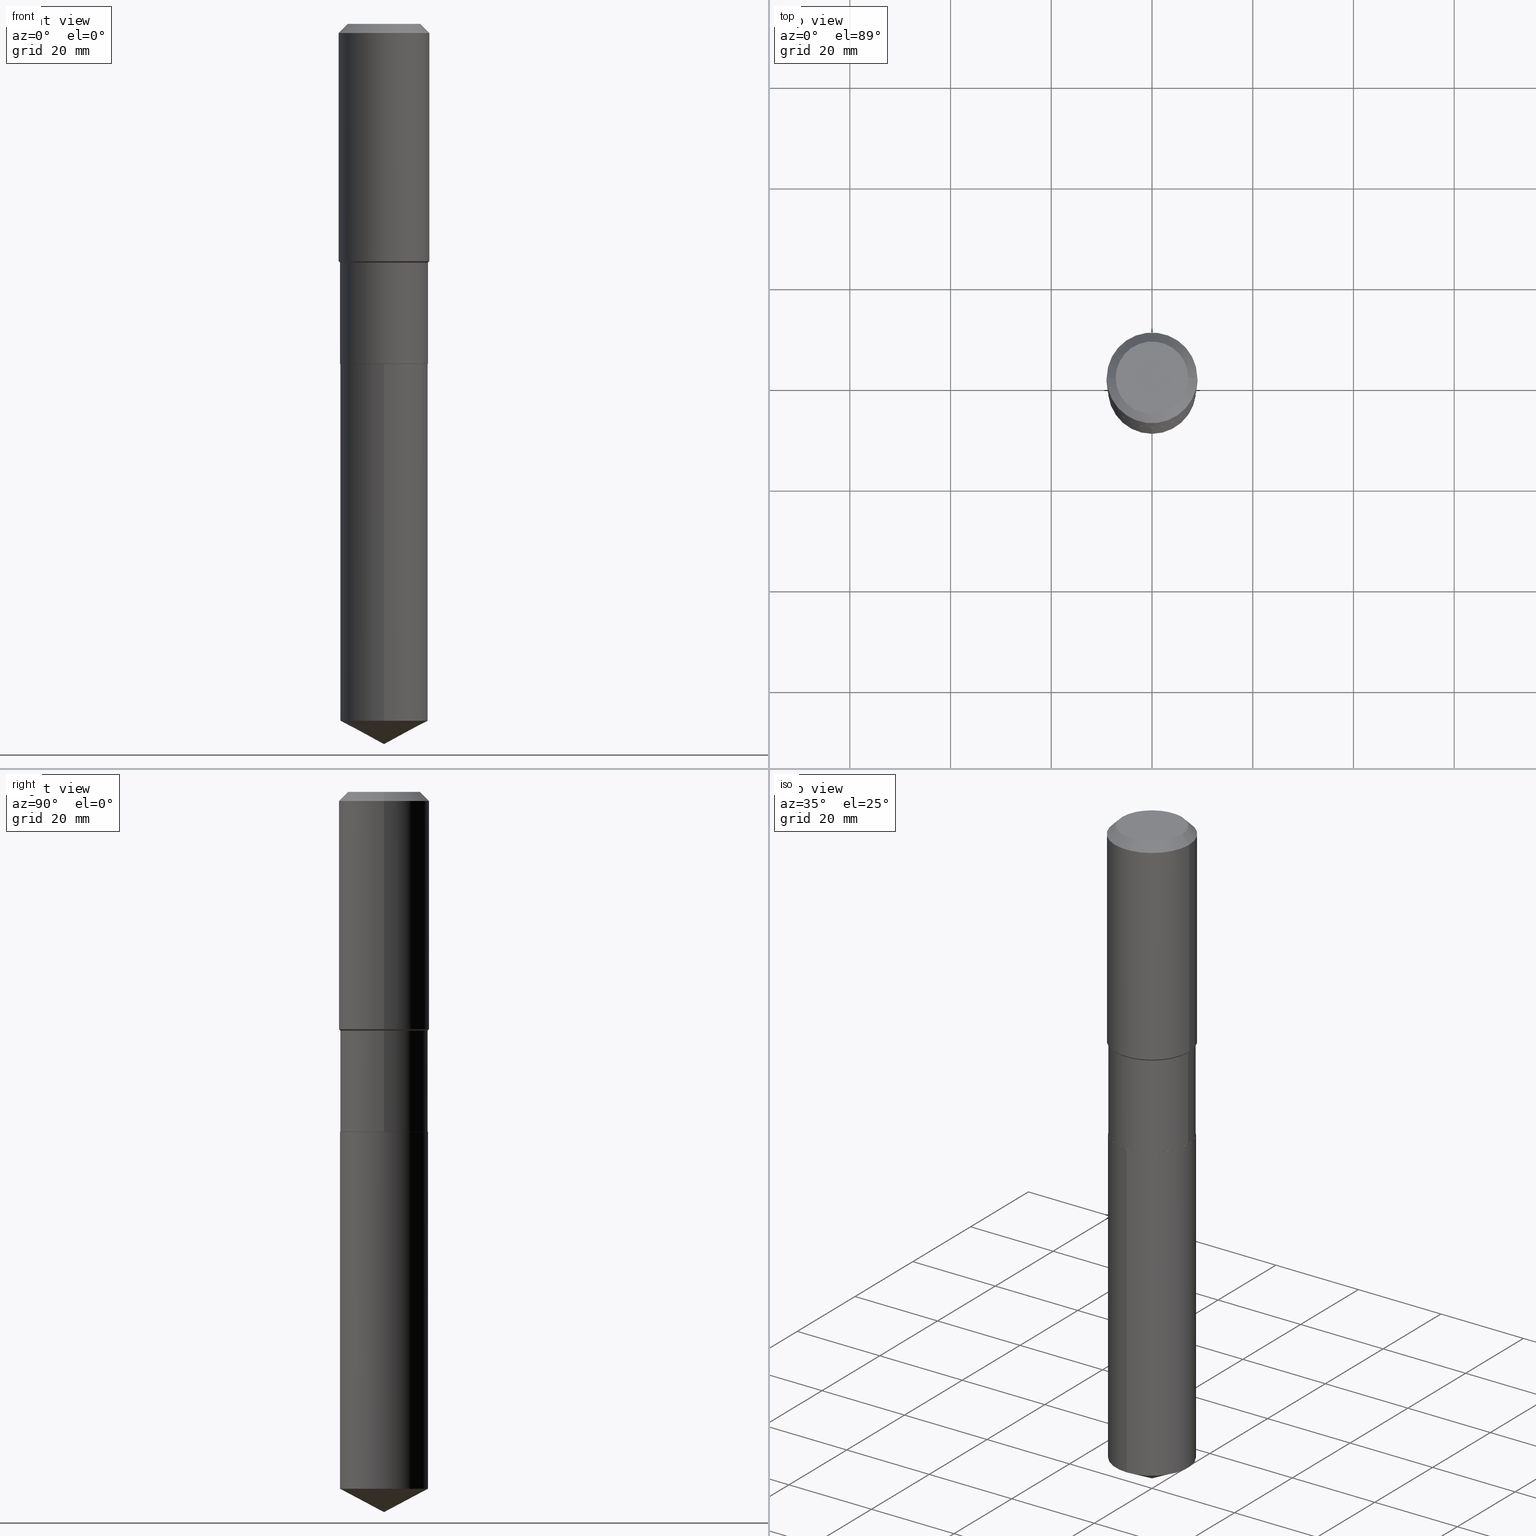
[diagram: canonical four-view strip — front | top / right | iso, engineering-drawing reading convention]
A machine part, canonical four-view strip (front | top / right | iso — engineering-drawing reading convention). The complete STEP part file that produces these views, byte-faithful:
ISO-10303-21;
HEADER;
FILE_DESCRIPTION (( 'STEP AP203' ),
    '1' );
FILE_NAME ('54834.STEP',
    '2024-04-24T16:08:33',
    ( '' ),
    ( '' ),
    'SwSTEP 2.0',
    'SolidWorks 2023',
    '' );
FILE_SCHEMA (( 'CONFIG_CONTROL_DESIGN' ));
ENDSEC;

DATA;
#1 = DIRECTION ( 'NONE',  ( -2.445468806185136597E-29, 3.491481338843145583E-15, 1.000000000000000000 ) ) ;
#2 = ORIENTED_EDGE ( 'NONE', *, *, #67, .F. ) ;
#3 = DIRECTION ( 'NONE',  ( 1.000000000000000000, -6.982962677686266711E-15, 0.000000000000000000 ) ) ;
#4 = PERSON_AND_ORGANIZATION ( #281, #330 ) ;
#5 = CARTESIAN_POINT ( 'NONE',  ( 6.496387883630815486E-29, -9.275120176636818437E-15, -2.656500000000000306 ) ) ;
#6 = VECTOR ( 'NONE', #356, 39.37007874015748143 ) ;
#7 = FACE_OUTER_BOUND ( 'NONE', #347, .T. ) ;
#8 = PRODUCT_DEFINITION ( 'UNKNOWN', '', #481, #229 ) ;
#9 = FACE_OUTER_BOUND ( 'NONE', #434, .T. ) ;
#10 = ORIENTED_EDGE ( 'NONE', *, *, #67, .T. ) ;
#11 = EDGE_CURVE ( 'NONE', #24, #174, #483, .T. ) ;
#12 = LINE ( 'NONE', #359, #222 ) ;
#13 = ORIENTED_EDGE ( 'NONE', *, *, #451, .T. ) ;
#14 = CC_DESIGN_PERSON_AND_ORGANIZATION_ASSIGNMENT ( #105, #334, ( #46 ) ) ;
#15 = DIRECTION ( 'NONE',  ( 1.000000000000000000, -6.982962677686264344E-15, 0.000000000000000000 ) ) ;
#16 = ORIENTED_EDGE ( 'NONE', *, *, #120, .F. ) ;
#17 = DIRECTION ( 'NONE',  ( -0.7071067811865521247, 7.493145998870371515E-15, 0.7071067811865430208 ) ) ;
#18 = ORIENTED_EDGE ( 'NONE', *, *, #204, .F. ) ;
#19 = AXIS2_PLACEMENT_3D ( 'NONE', #485, #22, #327 ) ;
#20 = CC_DESIGN_APPROVAL ( #152, ( #191 ) ) ;
#21 = EDGE_LOOP ( 'NONE', ( #318, #258, #386, #405 ) ) ;
#22 = DIRECTION ( 'NONE',  ( -2.445468806185136597E-29, 3.491481338843145583E-15, 1.000000000000000000 ) ) ;
#23 = DIRECTION ( 'NONE',  ( -2.445468806185136597E-29, 3.491481338843145583E-15, 1.000000000000000000 ) ) ;
#24 = VERTEX_POINT ( 'NONE', #29 ) ;
#25 = LINE ( 'NONE', #395, #378 ) ;
#26 = EDGE_CURVE ( 'NONE', #24, #320, #382, .T. ) ;
#27 = ORIENTED_EDGE ( 'NONE', *, *, #192, .T. ) ;
#28 = DIRECTION ( 'NONE',  ( 1.000000000000000000, -6.982962677686266711E-15, 4.876249319814053138E-29 ) ) ;
#29 = CARTESIAN_POINT ( 'NONE',  ( 0.3432499999999999996, -1.167202211575263040E-14, -2.656500000000000306 ) ) ;
#30 = PERSON_AND_ORGANIZATION_ROLE ( 'creator' ) ;
#31 = EDGE_CURVE ( 'NONE', #174, #292, #221, .T. ) ;
#32 = CARTESIAN_POINT ( 'NONE',  ( 0.3543499999999999983, -2.721854107321943733E-15, -0.07087000000000043265 ) ) ;
#33 = ADVANCED_FACE ( 'NONE', ( #373 ), #211, .T. ) ;
#34 = CARTESIAN_POINT ( 'NONE',  ( -0.3437499999999999445, -5.451574078882065382E-15, -1.865899999999999892 ) ) ;
#35 = VECTOR ( 'NONE', #231, 39.37007874015748143 ) ;
#36 = VERTEX_POINT ( 'NONE', #250 ) ;
#37 = DIRECTION ( 'NONE',  ( 1.000000000000000000, -6.982962677686264344E-15, 0.000000000000000000 ) ) ;
#38 = EDGE_CURVE ( 'NONE', #292, #174, #421, .T. ) ;
#39 = EDGE_CURVE ( 'NONE', #161, #127, #302, .T. ) ;
#40 = FACE_OUTER_BOUND ( 'NONE', #209, .T. ) ;
#41 = ADVANCED_FACE ( 'NONE', ( #138 ), #438, .T. ) ;
#42 = CARTESIAN_POINT ( 'NONE',  ( 1.332065641372455860E-28, -1.901940260002451238E-14, -5.447224882866367857 ) ) ;
#43 = AXIS2_PLACEMENT_3D ( 'NONE', #101, #254, #135 ) ;
#44 = EDGE_CURVE ( 'NONE', #82, #36, #146, .T. ) ;
#45 = DIRECTION ( 'NONE',  ( -6.982962677686265922E-15, -1.000000000000000000, 3.178877665354778874E-15 ) ) ;
#46 = PRODUCT ( '54834', '54834', '', ( #261 ) ) ;
#47 = ORIENTED_EDGE ( 'NONE', *, *, #44, .T. ) ;
#48 = CARTESIAN_POINT ( 'NONE',  ( 6.496387883630815486E-29, -9.275120176636815281E-15, -2.656499999999999861 ) ) ;
#49 = VERTEX_POINT ( 'NONE', #449 ) ;
#50 = LOCAL_TIME ( 12, 8, 33.00000000000000000, #184 ) ;
#51 = APPROVAL_ROLE ( '' ) ;
#52 = VERTEX_POINT ( 'NONE', #186 ) ;
#53 = CYLINDRICAL_SURFACE ( 'NONE', #286, 0.3437500000000000000 ) ;
#54 = ORIENTED_EDGE ( 'NONE', *, *, #437, .T. ) ;
#55 = CC_DESIGN_PERSON_AND_ORGANIZATION_ASSIGNMENT ( #149, #30, ( #8 ) ) ;
#56 = ORIENTED_EDGE ( 'NONE', *, *, #479, .F. ) ;
#57 = VECTOR ( 'NONE', #415, 39.37007874015748143 ) ;
#58 = CARTESIAN_POINT ( 'NONE',  ( 1.733103742943417062E-30, -2.474412824838152853E-16, -0.07087000000000043265 ) ) ;
#59 = LINE ( 'NONE', #139, #86 ) ;
#60 = FACE_OUTER_BOUND ( 'NONE', #467, .T. ) ;
#61 = CONICAL_SURFACE ( 'NONE', #189, 74.04434902938356799, 1.082104136236486713 ) ;
#62 = DIRECTION ( 'NONE',  ( -2.445468806185136597E-29, 3.491481338843145583E-15, 1.000000000000000000 ) ) ;
#63 = COORDINATED_UNIVERSAL_TIME_OFFSET ( 5, 0, .BEHIND. ) ;
#64 = VECTOR ( 'NONE', #238, 39.37007874015748143 ) ;
#65 = CARTESIAN_POINT ( 'NONE',  ( 0.000000000000000000, 0.000000000000000000, 0.000000000000000000 ) ) ;
#66 = APPLICATION_PROTOCOL_DEFINITION ( 'international standard', 'config_control_design', 1994, #75 ) ;
#67 = EDGE_CURVE ( 'NONE', #82, #429, #240, .T. ) ;
#68 = DIRECTION ( 'NONE',  ( -2.445339048643341394E-29, 3.491667159028337062E-15, 1.000000000000000000 ) ) ;
#69 = VERTEX_POINT ( 'NONE', #458 ) ;
#70 = CARTESIAN_POINT ( 'NONE',  ( -2.400393420454521259E-15, -0.3437500000000189848, -5.447224882866366080 ) ) ;
#71 = CIRCLE ( 'NONE', #147, 0.3432499999999999996 ) ;
#72 = CIRCLE ( 'NONE', #106, 0.3437500000000000000 ) ;
#73 = DIRECTION ( 'NONE',  ( 2.438088387897960049E-29, -3.491481338843145188E-15, -1.000000000000000000 ) ) ;
#74 = APPROVAL_STATUS ( 'not_yet_approved' ) ;
#75 = APPLICATION_CONTEXT ( 'configuration controlled 3d designs of mechanical parts and assemblies' ) ;
#76 = DIRECTION ( 'NONE',  ( -2.445339048643341394E-29, 3.491667159028337062E-15, 1.000000000000000000 ) ) ;
#77 = DIRECTION ( 'NONE',  ( -2.445468806185136597E-29, 3.491481338843145583E-15, 1.000000000000000000 ) ) ;
#78 = VECTOR ( 'NONE', #340, 39.37007874015748143 ) ;
#79 = DIRECTION ( 'NONE',  ( 1.000000000000000000, -6.982962677686269077E-15, 0.000000000000000000 ) ) ;
#80 = VERTEX_POINT ( 'NONE', #310 ) ;
#81 = CARTESIAN_POINT ( 'NONE',  ( 2.442490654175477706E-15, 0.3437499999999907851, -2.656500000000001194 ) ) ;
#82 = VERTEX_POINT ( 'NONE', #70 ) ;
#83 = CARTESIAN_POINT ( 'NONE',  ( -8.250558734669836059E-28, 1.178096185113600209E-13, 33.74007874015748598 ) ) ;
#84 = VERTEX_POINT ( 'NONE', #157 ) ;
#85 = AXIS2_PLACEMENT_3D ( 'NONE', #376, #77, #224 ) ;
#86 = VECTOR ( 'NONE', #293, 39.37007874015748143 ) ;
#87 = DATE_AND_TIME ( #122, #233 ) ;
#88 = CARTESIAN_POINT ( 'NONE',  ( -0.3432499999999999996, -6.836182236140274157E-15, -2.656500000000000306 ) ) ;
#89 = ORIENTED_EDGE ( 'NONE', *, *, #192, .F. ) ;
#90 = APPROVAL_STATUS ( 'not_yet_approved' ) ;
#91 = DIRECTION ( 'NONE',  ( -6.982962677686265922E-15, -1.000000000000000000, 3.178877665354778874E-15 ) ) ;
#92 = EDGE_LOOP ( 'NONE', ( #13, #316, #124, #285 ) ) ;
#93 =( CONVERSION_BASED_UNIT ( 'INCH', #435 ) LENGTH_UNIT ( ) NAMED_UNIT ( #321 ) );
#94 = ADVANCED_FACE ( 'NONE', ( #271 ), #416, .F. ) ;
#95 = CARTESIAN_POINT ( 'NONE',  ( 6.495165149227721563E-29, -9.273374435967392989E-15, -2.655999999999999694 ) ) ;
#96 = CIRCLE ( 'NONE', #447, 0.3437499999999999445 ) ;
#97 = CARTESIAN_POINT ( 'NONE',  ( 0.000000000000000000, 0.000000000000000000, 0.000000000000000000 ) ) ;
#98 = DIRECTION ( 'NONE',  ( -2.445339048643341394E-29, 3.491667159028337062E-15, 1.000000000000000000 ) ) ;
#99 = EDGE_CURVE ( 'NONE', #49, #190, #295, .T. ) ;
#100 = CARTESIAN_POINT ( 'NONE',  ( 6.495165149227721563E-29, -9.273374435967392989E-15, -2.655999999999999694 ) ) ;
#101 = CARTESIAN_POINT ( 'NONE',  ( 4.537078276115283261E-29, -6.477745327955687522E-15, -1.855299999999999727 ) ) ;
#102 = ORIENTED_EDGE ( 'NONE', *, *, #31, .F. ) ;
#103 = AXIS2_PLACEMENT_3D ( 'NONE', #343, #453, #111 ) ;
#104 = ORIENTED_EDGE ( 'NONE', *, *, #482, .T. ) ;
#105 = PERSON_AND_ORGANIZATION ( #281, #330 ) ;
#106 = AXIS2_PLACEMENT_3D ( 'NONE', #207, #98, #442 ) ;
#107 = EDGE_CURVE ( 'NONE', #80, #52, #336, .T. ) ;
#108 = CARTESIAN_POINT ( 'NONE',  ( -0.3543499999999999983, 2.226971542354313655E-15, -0.07087000000000043265 ) ) ;
#109 = ORIENTED_EDGE ( 'NONE', *, *, #187, .T. ) ;
#110 = DIRECTION ( 'NONE',  ( -2.445468806185136597E-29, 3.491481338843145583E-15, 1.000000000000000000 ) ) ;
#111 = DIRECTION ( 'NONE',  ( 6.982962677686265922E-15, 1.000000000000000000, -3.491667159028337062E-15 ) ) ;
#112 = APPROVAL_DATE_TIME ( #301, #313 ) ;
#113 = CC_DESIGN_APPROVAL ( #313, ( #481 ) ) ;
#114 = DIRECTION ( 'NONE',  ( -2.445468806185136597E-29, 3.491481338843145583E-15, 1.000000000000000000 ) ) ;
#115 = CARTESIAN_POINT ( 'NONE',  ( -4.719860820353095981E-47, 6.738710358733626979E-33, 1.930043355456227555E-18 ) ) ;
#116 = DIRECTION ( 'NONE',  ( -2.445468806185136597E-29, 3.491481338843145583E-15, 1.000000000000000000 ) ) ;
#117 = ORIENTED_EDGE ( 'NONE', *, *, #252, .F. ) ;
#118 = AXIS2_PLACEMENT_3D ( 'NONE', #443, #364, #477 ) ;
#119 = AXIS2_PLACEMENT_3D ( 'NONE', #269, #76, #230 ) ;
#120 = EDGE_CURVE ( 'NONE', #174, #161, #217, .T. ) ;
#121 = AXIS2_PLACEMENT_3D ( 'NONE', #404, #251, #290 ) ;
#122 = CALENDAR_DATE ( 2024, 24, 4 ) ;
#123 = DIRECTION ( 'NONE',  ( 1.000000000000000000, -6.982962677686269077E-15, 0.000000000000000000 ) ) ;
#124 = ORIENTED_EDGE ( 'NONE', *, *, #187, .F. ) ;
#125 = EDGE_CURVE ( 'NONE', #127, #161, #96, .T. ) ;
#126 = DIRECTION ( 'NONE',  ( 0.7071067811865521247, -2.468850131082304787E-15, 0.7071067811865430208 ) ) ;
#127 = VERTEX_POINT ( 'NONE', #34 ) ;
#128 = CARTESIAN_POINT ( 'NONE',  ( -0.3437500000000000000, -5.451574078882065382E-15, -2.655999999999999694 ) ) ;
#129 = EDGE_CURVE ( 'NONE', #292, #127, #183, .T. ) ;
#130 = ORIENTED_EDGE ( 'NONE', *, *, #437, .F. ) ;
#131 = AXIS2_PLACEMENT_3D ( 'NONE', #42, #309, #260 ) ;
#132 = LOCAL_TIME ( 12, 8, 33.00000000000000000, #63 ) ;
#133 = DIRECTION ( 'NONE',  ( -2.445468806185136597E-29, 3.491481338843145583E-15, 1.000000000000000000 ) ) ;
#134 = ORIENTED_EDGE ( 'NONE', *, *, #252, .T. ) ;
#135 = DIRECTION ( 'NONE',  ( 1.000000000000000000, -6.982962677686269077E-15, 0.000000000000000000 ) ) ;
#136 = ADVANCED_FACE ( 'NONE', ( #413 ), #352, .T. ) ;
#137 = PRODUCT_RELATED_PRODUCT_CATEGORY ( 'detail', '', ( #46 ) ) ;
#138 = FACE_OUTER_BOUND ( 'NONE', #397, .T. ) ;
#139 = CARTESIAN_POINT ( 'NONE',  ( 0.3543500000000001648, -2.474412824838129483E-15, 1.727873240503290590E-29 ) ) ;
#140 = AXIS2_PLACEMENT_3D ( 'NONE', #303, #68, #226 ) ;
#141 = APPROVAL_PERSON_ORGANIZATION ( #4, #324, #218 ) ;
#142 = ORIENTED_EDGE ( 'NONE', *, *, #99, .F. ) ;
#143 = ORIENTED_EDGE ( 'NONE', *, *, #38, .T. ) ;
#144 = PERSON_AND_ORGANIZATION ( #281, #330 ) ;
#145 = ORIENTED_EDGE ( 'NONE', *, *, #155, .F. ) ;
#146 = LINE ( 'NONE', #300, #232 ) ;
#147 = AXIS2_PLACEMENT_3D ( 'NONE', #5, #179, #335 ) ;
#148 = DIRECTION ( 'NONE',  ( 1.000000000000000000, -6.982962677686265922E-15, 4.876176775795935793E-29 ) ) ;
#149 = PERSON_AND_ORGANIZATION ( #281, #330 ) ;
#150 = FACE_OUTER_BOUND ( 'NONE', #21, .T. ) ;
#151 = CALENDAR_DATE ( 2024, 24, 4 ) ;
#152 = APPROVAL ( #90, 'UNSPECIFIED' ) ;
#153 = DIRECTION ( 'NONE',  ( -2.445468806185136597E-29, 3.491481338843145583E-15, 1.000000000000000000 ) ) ;
#154 = APPROVAL_ROLE ( '' ) ;
#155 = EDGE_CURVE ( 'NONE', #361, #49, #381, .T. ) ;
#156 = CARTESIAN_POINT ( 'NONE',  ( 1.733103742943417062E-30, -2.474412824838152853E-16, -0.07087000000000043265 ) ) ;
#157 = CARTESIAN_POINT ( 'NONE',  ( 1.376725884386201101E-28, -1.965808610532953700E-14, -5.629999999999999893 ) ) ;
#158 = DIRECTION ( 'NONE',  ( 1.000000000000000000, -6.982962677686265922E-15, 4.876176775795935793E-29 ) ) ;
#159 = ADVANCED_FACE ( 'NONE', ( #188 ), #181, .T. ) ;
#160 = FACE_OUTER_BOUND ( 'NONE', #165, .T. ) ;
#161 = VERTEX_POINT ( 'NONE', #346 ) ;
#162 = CARTESIAN_POINT ( 'NONE',  ( -0.3432499999999999996, -6.833533008966162167E-15, -2.656500000000000306 ) ) ;
#163 = EDGE_LOOP ( 'NONE', ( #436, #394 ) ) ;
#164 = CARTESIAN_POINT ( 'NONE',  ( -0.2834800000000000098, 2.103250901112408108E-15, 3.860086710898179346E-18 ) ) ;
#165 = EDGE_LOOP ( 'NONE', ( #388, #417, #427, #16 ) ) ;
#166 = LINE ( 'NONE', #322, #345 ) ;
#167 = ORIENTED_EDGE ( 'NONE', *, *, #396, .F. ) ;
#168 = APPLICATION_CONTEXT ( 'configuration controlled 3d designs of mechanical parts and assemblies' ) ;
#169 = CLOSED_SHELL ( 'NONE', ( #266, #279, #136, #223, #94 ) ) ;
#170 = VECTOR ( 'NONE', #255, 39.37007874015748143 ) ;
#171 = AXIS2_PLACEMENT_3D ( 'NONE', #393, #350, #205 ) ;
#172 = ORIENTED_EDGE ( 'NONE', *, *, #120, .T. ) ;
#173 = CC_DESIGN_DATE_AND_TIME_ASSIGNMENT ( #182, #486, ( #8 ) ) ;
#174 = VERTEX_POINT ( 'NONE', #304 ) ;
#175 = AXIS2_PLACEMENT_3D ( 'NONE', #95, #62, #216 ) ;
#176 = CONICAL_SURFACE ( 'NONE', #463, 0.3543499999999999983, 0.7853981633974452814 ) ;
#177 = DIRECTION ( 'NONE',  ( 1.000000000000000000, -6.982962677686265922E-15, 4.876176775795935793E-29 ) ) ;
#178 = DIRECTION ( 'NONE',  ( 1.000000000000000000, -6.982962677686265922E-15, 4.876176775795935793E-29 ) ) ;
#179 = DIRECTION ( 'NONE',  ( -2.445468806185136597E-29, 3.491481338843145583E-15, 1.000000000000000000 ) ) ;
#180 = CIRCLE ( 'NONE', #140, 0.3437500000000000000 ) ;
#181 = CYLINDRICAL_SURFACE ( 'NONE', #314, 0.3543500000000001648 ) ;
#182 = DATE_AND_TIME ( #151, #308 ) ;
#183 = LINE ( 'NONE', #487, #35 ) ;
#184 = COORDINATED_UNIVERSAL_TIME_OFFSET ( 5, 0, .BEHIND. ) ;
#185 = ADVANCED_FACE ( 'NONE', ( #7 ), #459, .F. ) ;
#186 = CARTESIAN_POINT ( 'NONE',  ( 0.3543500000000002204, -8.952158152793815822E-15, -1.855299999999999727 ) ) ;
#187 = EDGE_CURVE ( 'NONE', #190, #49, #369, .T. ) ;
#188 = FACE_OUTER_BOUND ( 'NONE', #92, .T. ) ;
#189 = AXIS2_PLACEMENT_3D ( 'NONE', #83, #353, #472 ) ;
#190 = VERTEX_POINT ( 'NONE', #32 ) ;
#191 = SECURITY_CLASSIFICATION ( '', '', #444 ) ;
#192 = EDGE_CURVE ( 'NONE', #320, #24, #71, .T. ) ;
#193 = FACE_OUTER_BOUND ( 'NONE', #298, .T. ) ;
#194 = APPROVAL_DATE_TIME ( #259, #324 ) ;
#195 = CARTESIAN_POINT ( 'NONE',  ( 0.3437499999999999445, -8.915148450602078368E-15, -1.865899999999999892 ) ) ;
#196 = ORIENTED_EDGE ( 'NONE', *, *, #99, .T. ) ;
#197 = DATE_AND_TIME ( #275, #257 ) ;
#198 = CYLINDRICAL_SURFACE ( 'NONE', #273, 0.3437500000000000000 ) ;
#199 = ORIENTED_EDGE ( 'NONE', *, *, #129, .F. ) ;
#200 = AXIS2_PLACEMENT_3D ( 'NONE', #431, #288, #234 ) ;
#201 = CC_DESIGN_APPROVAL ( #324, ( #8 ) ) ;
#202 = DATE_TIME_ROLE ( 'classification_date' ) ;
#203 = ORIENTED_EDGE ( 'NONE', *, *, #11, .T. ) ;
#204 = EDGE_CURVE ( 'NONE', #360, #36, #180, .T. ) ;
#205 = DIRECTION ( 'NONE',  ( 1.000000000000000000, -6.982962677686266711E-15, 4.876249319814053138E-29 ) ) ;
#206 = ORIENTED_EDGE ( 'NONE', *, *, #339, .T. ) ;
#207 = CARTESIAN_POINT ( 'NONE',  ( 1.332065641372455860E-28, -1.901940260002451238E-14, -5.447224882866367857 ) ) ;
#208 = ADVANCED_FACE ( 'NONE', ( #150 ), #363, .T. ) ;
#209 = EDGE_LOOP ( 'NONE', ( #117, #54, #47, #18 ) ) ;
#210 = AXIS2_PLACEMENT_3D ( 'NONE', #380, #110, #263 ) ;
#211 = CYLINDRICAL_SURFACE ( 'NONE', #377, 0.3543500000000001648 ) ;
#212 = DIRECTION ( 'NONE',  ( -1.000000000000000000, 6.982962677686266711E-15, 0.000000000000000000 ) ) ;
#213 = ORIENTED_EDGE ( 'NONE', *, *, #11, .F. ) ;
#214 = LINE ( 'NONE', #248, #370 ) ;
#215 = CIRCLE ( 'NONE', #200, 0.3437500000000000000 ) ;
#216 = DIRECTION ( 'NONE',  ( 1.000000000000000000, -6.982962677686269077E-15, 0.000000000000000000 ) ) ;
#217 = LINE ( 'NONE', #265, #78 ) ;
#218 = APPROVAL_ROLE ( '' ) ;
#219 = CC_DESIGN_PERSON_AND_ORGANIZATION_ASSIGNMENT ( #338, #412, ( #191 ) ) ;
#220 = ORIENTED_EDGE ( 'NONE', *, *, #420, .F. ) ;
#221 = CIRCLE ( 'NONE', #175, 0.3437500000000000000 ) ;
#222 = VECTOR ( 'NONE', #17, 39.37007874015748143 ) ;
#223 = ADVANCED_FACE ( 'NONE', ( #40 ), #198, .T. ) ;
#224 = DIRECTION ( 'NONE',  ( 1.000000000000000000, -6.982962677686269077E-15, 0.000000000000000000 ) ) ;
#225 = COORDINATED_UNIVERSAL_TIME_OFFSET ( 5, 0, .BEHIND. ) ;
#226 = DIRECTION ( 'NONE',  ( -6.982962677686265922E-15, -1.000000000000000000, 3.178877665354778874E-15 ) ) ;
#227 = APPLICATION_PROTOCOL_DEFINITION ( 'international standard', 'config_control_design', 1994, #168 ) ;
#228 = ADVANCED_FACE ( 'NONE', ( #348 ), #401, .T. ) ;
#229 = DESIGN_CONTEXT ( 'detailed design', #168, 'design' ) ;
#230 = DIRECTION ( 'NONE',  ( -6.982962677686266711E-15, -1.000000000000000000, 3.541896320645559291E-15 ) ) ;
#231 = DIRECTION ( 'NONE',  ( -2.445468806185136877E-29, 3.491481338843145188E-15, 1.000000000000000000 ) ) ;
#232 = VECTOR ( 'NONE', #445, 39.37007874015748143 ) ;
#233 = LOCAL_TIME ( 12, 8, 33.00000000000000000, #283 ) ;
#234 = DIRECTION ( 'NONE',  ( -6.982962677686265922E-15, -1.000000000000000000, 3.178877665354778874E-15 ) ) ;
#235 = ORIENTED_EDGE ( 'NONE', *, *, #396, .T. ) ;
#236 = DIRECTION ( 'NONE',  ( -2.445339048643341394E-29, 3.491667159028337062E-15, 1.000000000000000000 ) ) ;
#237 = ORIENTED_EDGE ( 'NONE', *, *, #392, .F. ) ;
#238 = DIRECTION ( 'NONE',  ( -0.7071067811860163310, 7.493145998868434073E-15, 0.7071067811870787034 ) ) ;
#239 = ORIENTED_EDGE ( 'NONE', *, *, #107, .T. ) ;
#240 = CIRCLE ( 'NONE', #131, 0.3437500000000000000 ) ;
#241 = CC_DESIGN_SECURITY_CLASSIFICATION ( #191, ( #481 ) ) ;
#242 = DIRECTION ( 'NONE',  ( -2.445468806185136597E-29, 3.491481338843145583E-15, 1.000000000000000000 ) ) ;
#243 = MANIFOLD_SOLID_BREP ( 'Body-Move/Copy2[2]', #325 ) ;
#244 = EDGE_LOOP ( 'NONE', ( #289, #27, #203, #262 ) ) ;
#245 = DIRECTION ( 'NONE',  ( 0.7071067811865453523, -7.319954787623248157E-15, -0.7071067811865496822 ) ) ;
#246 = PRODUCT_DEFINITION_SHAPE ( 'NONE', 'NONE',  #8 ) ;
#247 = ORIENTED_EDGE ( 'NONE', *, *, #291, .F. ) ;
#248 = CARTESIAN_POINT ( 'NONE',  ( 0.3543499999999999983, -2.678458747994157430E-15, -0.07087000000000043265 ) ) ;
#249 = EDGE_CURVE ( 'NONE', #36, #360, #215, .T. ) ;
#250 = CARTESIAN_POINT ( 'NONE',  ( -2.400393420454588706E-15, -0.3437500000000092704, -2.656499999999998973 ) ) ;
#251 = DIRECTION ( 'NONE',  ( 2.445468806185136597E-29, -3.491481338843145583E-15, -1.000000000000000000 ) ) ;
#252 = EDGE_CURVE ( 'NONE', #429, #360, #464, .T. ) ;
#253 = DIRECTION ( 'NONE',  ( -2.445468806185136597E-29, 3.491481338843145583E-15, 1.000000000000000000 ) ) ;
#254 = DIRECTION ( 'NONE',  ( -2.445468806185136597E-29, 3.491481338843145583E-15, 1.000000000000000000 ) ) ;
#255 = DIRECTION ( 'NONE',  ( 0.7071067811860163310, -2.468850131076692830E-15, 0.7071067811870787034 ) ) ;
#256 = AXIS2_PLACEMENT_3D ( 'NONE', #156, #1, #3 ) ;
#257 = LOCAL_TIME ( 12, 8, 33.00000000000000000, #468 ) ;
#258 = ORIENTED_EDGE ( 'NONE', *, *, #392, .T. ) ;
#259 = DATE_AND_TIME ( #374, #132 ) ;
#260 = DIRECTION ( 'NONE',  ( -6.982962677686265922E-15, -1.000000000000000000, 3.178877665354778874E-15 ) ) ;
#261 = MECHANICAL_CONTEXT ( 'NONE', #75, 'mechanical' ) ;
#262 = ORIENTED_EDGE ( 'NONE', *, *, #38, .F. ) ;
#263 = DIRECTION ( 'NONE',  ( 1.000000000000000000, -6.982962677686264344E-15, 0.000000000000000000 ) ) ;
#264 = APPROVAL_PERSON_ORGANIZATION ( #409, #313, #154 ) ;
#265 = CARTESIAN_POINT ( 'NONE',  ( 0.3437500000000000000, -2.400393420454653787E-15, 1.676185766679852859E-29 ) ) ;
#266 = ADVANCED_FACE ( 'NONE', ( #272 ), #428, .T. ) ;
#267 = DIRECTION ( 'NONE',  ( 0.000000000000000000, 0.000000000000000000, 1.000000000000000000 ) ) ;
#268 = ORIENTED_EDGE ( 'NONE', *, *, #307, .T. ) ;
#269 = CARTESIAN_POINT ( 'NONE',  ( -8.250558734669836059E-28, 1.178096185113600209E-13, 33.74007874015748598 ) ) ;
#270 = ADVANCED_FACE ( 'NONE', ( #160 ), #53, .T. ) ;
#271 = FACE_OUTER_BOUND ( 'NONE', #163, .T. ) ;
#272 = FACE_OUTER_BOUND ( 'NONE', #357, .T. ) ;
#273 = AXIS2_PLACEMENT_3D ( 'NONE', #276, #236, #45 ) ;
#274 = ORIENTED_EDGE ( 'NONE', *, *, #125, .T. ) ;
#275 = CALENDAR_DATE ( 2024, 24, 4 ) ;
#276 = CARTESIAN_POINT ( 'NONE',  ( 6.496387883630815486E-29, -9.275120176636815281E-15, -2.656499999999999861 ) ) ;
#277 = CC_DESIGN_PERSON_AND_ORGANIZATION_ASSIGNMENT ( #349, #450, ( #481 ) ) ;
#278 = ORIENTED_EDGE ( 'NONE', *, *, #26, .F. ) ;
#279 = ADVANCED_FACE ( 'NONE', ( #311 ), #61, .T. ) ;
#280 = DIRECTION ( 'NONE',  ( -2.445468806185136597E-29, 3.491481338843145583E-15, 1.000000000000000000 ) ) ;
#281 = PERSON ( 'UNSPECIFIED', 'UNSPECIFIED', 'UNSPECIFIED', ('UNSPECIFIED'), ('UNSPECIFIED'), ('UNSPECIFIED') ) ;
#282 = ORIENTED_EDGE ( 'NONE', *, *, #372, .F. ) ;
#283 = COORDINATED_UNIVERSAL_TIME_OFFSET ( 5, 0, .BEHIND. ) ;
#284 = FACE_OUTER_BOUND ( 'NONE', #244, .T. ) ;
#285 = ORIENTED_EDGE ( 'NONE', *, *, #440, .F. ) ;
#286 = AXIS2_PLACEMENT_3D ( 'NONE', #469, #133, #158 ) ;
#287 = VECTOR ( 'NONE', #126, 39.37007874015748143 ) ;
#288 = DIRECTION ( 'NONE',  ( -2.445339048643341394E-29, 3.491667159028337062E-15, 1.000000000000000000 ) ) ;
#289 = ORIENTED_EDGE ( 'NONE', *, *, #339, .F. ) ;
#290 = DIRECTION ( 'NONE',  ( -1.000000000000000000, 6.982962677686266711E-15, 0.000000000000000000 ) ) ;
#291 = EDGE_CURVE ( 'NONE', #80, #49, #466, .T. ) ;
#292 = VERTEX_POINT ( 'NONE', #128 ) ;
#293 = DIRECTION ( 'NONE',  ( -2.445468806185136877E-29, 3.491481338843145188E-15, 1.000000000000000000 ) ) ;
#294 = DIRECTION ( 'NONE',  ( 1.000000000000000000, -6.982962677686269077E-15, 0.000000000000000000 ) ) ;
#295 = CIRCLE ( 'NONE', #256, 0.3543499999999999983 ) ;
#296 = CONICAL_SURFACE ( 'NONE', #121, 0.3543499999999999983, 0.7853981633974452814 ) ;
#297 = ADVANCED_FACE ( 'NONE', ( #9 ), #439, .T. ) ;
#298 = EDGE_LOOP ( 'NONE', ( #278, #89 ) ) ;
#299 = PERSON_AND_ORGANIZATION_ROLE ( 'design_supplier' ) ;
#300 = CARTESIAN_POINT ( 'NONE',  ( -2.400393420454588706E-15, -0.3437500000000092704, -2.656499999999998973 ) ) ;
#301 = DATE_AND_TIME ( #456, #50 ) ;
#302 = CIRCLE ( 'NONE', #19, 0.3437499999999999445 ) ;
#303 = CARTESIAN_POINT ( 'NONE',  ( 6.496387883630815486E-29, -9.275120176636815281E-15, -2.656499999999999861 ) ) ;
#304 = CARTESIAN_POINT ( 'NONE',  ( 0.3437500000000000000, -1.167376785642204796E-14, -2.655999999999999694 ) ) ;
#305 = DIRECTION ( 'NONE',  ( 1.000000000000000000, -6.982962677686266711E-15, 0.000000000000000000 ) ) ;
#306 = AXIS2_PLACEMENT_3D ( 'NONE', #100, #399, #294 ) ;
#307 = EDGE_CURVE ( 'NONE', #161, #52, #423, .T. ) ;
#308 = LOCAL_TIME ( 12, 8, 33.00000000000000000, #225 ) ;
#309 = DIRECTION ( 'NONE',  ( -2.445339048643341394E-29, 3.491667159028337062E-15, 1.000000000000000000 ) ) ;
#310 = CARTESIAN_POINT ( 'NONE',  ( -0.3543500000000002204, -3.959937143789770553E-15, -1.855299999999999727 ) ) ;
#311 = FACE_OUTER_BOUND ( 'NONE', #475, .T. ) ;
#312 = ORIENTED_EDGE ( 'NONE', *, *, #482, .F. ) ;
#313 = APPROVAL ( #74, 'UNSPECIFIED' ) ;
#314 = AXIS2_PLACEMENT_3D ( 'NONE', #455, #337, #148 ) ;
#315 = CARTESIAN_POINT ( 'NONE',  ( 6.496387883630815486E-29, -9.275120176636818437E-15, -2.656500000000000306 ) ) ;
#316 = ORIENTED_EDGE ( 'NONE', *, *, #291, .T. ) ;
#317 = CARTESIAN_POINT ( 'NONE',  ( 6.496387883630815486E-29, -9.275120176636818437E-15, -2.656500000000000306 ) ) ;
#318 = ORIENTED_EDGE ( 'NONE', *, *, #39, .T. ) ;
#319 = DIRECTION ( 'NONE',  ( -2.445339048643341394E-29, 3.491667159028337062E-15, 1.000000000000000000 ) ) ;
#320 = VERTEX_POINT ( 'NONE', #162 ) ;
#321 = DIMENSIONAL_EXPONENTS ( 1.000000000000000000, 0.000000000000000000, 0.000000000000000000, 0.000000000000000000, 0.000000000000000000, 0.000000000000000000, 0.000000000000000000 ) ;
#322 = CARTESIAN_POINT ( 'NONE',  ( 1.376795429092175195E-28, -1.965709884268561392E-14, -5.629999999999999893 ) ) ;
#323 = ORIENTED_EDGE ( 'NONE', *, *, #125, .F. ) ;
#324 = APPROVAL ( #375, 'UNSPECIFIED' ) ;
#325 = CLOSED_SHELL ( 'NONE', ( #297, #474, #159, #208, #270, #41, #228, #33, #460, #185, #418, #331 ) ) ;
#326 = AXIS2_PLACEMENT_3D ( 'NONE', #365, #23, #28 ) ;
#327 = DIRECTION ( 'NONE',  ( 1.000000000000000000, -6.982962677686264344E-15, 0.000000000000000000 ) ) ;
#328 = DIRECTION ( 'NONE',  ( 2.445468806185136597E-29, -3.491481338843145583E-15, -1.000000000000000000 ) ) ;
#329 = DIRECTION ( 'NONE',  ( -2.438088387897960049E-29, 3.491481338843145188E-15, 1.000000000000000000 ) ) ;
#330 = ORGANIZATION ( 'UNSPECIFIED', 'UNSPECIFIED', '' ) ;
#331 = ADVANCED_FACE ( 'NONE', ( #284 ), #448, .T. ) ;
#332 = EDGE_LOOP ( 'NONE', ( #167, #333, #130 ) ) ;
#333 = ORIENTED_EDGE ( 'NONE', *, *, #420, .T. ) ;
#334 = PERSON_AND_ORGANIZATION_ROLE ( 'design_owner' ) ;
#335 = DIRECTION ( 'NONE',  ( 1.000000000000000000, -6.982962677686269077E-15, 0.000000000000000000 ) ) ;
#336 = CIRCLE ( 'NONE', #85, 0.3543500000000002204 ) ;
#337 = DIRECTION ( 'NONE',  ( -2.445468806185136597E-29, 3.491481338843145583E-15, 1.000000000000000000 ) ) ;
#338 = PERSON_AND_ORGANIZATION ( #281, #330 ) ;
#339 = EDGE_CURVE ( 'NONE', #320, #292, #385, .T. ) ;
#340 = DIRECTION ( 'NONE',  ( -2.445468806185136877E-29, 3.491481338843145188E-15, 1.000000000000000000 ) ) ;
#341 = DIRECTION ( 'NONE',  ( 1.000000000000000000, 0.000000000000000000, 0.000000000000000000 ) ) ;
#342 = PLANE ( 'NONE',  #489 ) ;
#343 = CARTESIAN_POINT ( 'NONE',  ( 6.496387883630815486E-29, -9.275120176636815281E-15, -2.656499999999999861 ) ) ;
#344 = AXIS2_PLACEMENT_3D ( 'NONE', #419, #153, #305 ) ;
#345 = VECTOR ( 'NONE', #383, 39.37007874015748143 ) ;
#346 = CARTESIAN_POINT ( 'NONE',  ( 0.3437499999999999445, -8.915148450602078368E-15, -1.865899999999999892 ) ) ;
#347 = EDGE_LOOP ( 'NONE', ( #470, #476 ) ) ;
#348 = FACE_OUTER_BOUND ( 'NONE', #484, .T. ) ;
#349 = PERSON_AND_ORGANIZATION ( #281, #330 ) ;
#350 = DIRECTION ( 'NONE',  ( -2.445468806185136597E-29, 3.491481338843145583E-15, 1.000000000000000000 ) ) ;
#351 = ORIENTED_EDGE ( 'NONE', *, *, #249, .F. ) ;
#352 = CONICAL_SURFACE ( 'NONE', #119, 74.04434902938356799, 1.082104136236486713 ) ;
#353 = DIRECTION ( 'NONE',  ( -2.445339048643341394E-29, 3.491667159028337062E-15, 1.000000000000000000 ) ) ;
#354 = AXIS2_PLACEMENT_3D ( 'NONE', #446, #267, #341 ) ;
#355 = ORIENTED_EDGE ( 'NONE', *, *, #155, .T. ) ;
#356 = DIRECTION ( 'NONE',  ( -2.445468806185136877E-29, 3.491481338843145188E-15, 1.000000000000000000 ) ) ;
#357 = EDGE_LOOP ( 'NONE', ( #10, #134, #351, #432 ) ) ;
#358 = PERSON_AND_ORGANIZATION ( #281, #330 ) ;
#359 = CARTESIAN_POINT ( 'NONE',  ( -0.3437499999999999445, -4.072264375972081375E-15, -1.865899999999999892 ) ) ;
#360 = VERTEX_POINT ( 'NONE', #81 ) ;
#361 = VERTEX_POINT ( 'NONE', #164 ) ;
#362 =( NAMED_UNIT ( * ) PLANE_ANGLE_UNIT ( ) SI_UNIT ( $, .RADIAN. ) );
#363 = CONICAL_SURFACE ( 'NONE', #210, 0.3437499999999999445, 0.7853981633974547183 ) ;
#364 = DIRECTION ( 'NONE',  ( -2.445468806185136597E-29, 3.491481338843145583E-15, 1.000000000000000000 ) ) ;
#365 = CARTESIAN_POINT ( 'NONE',  ( -9.439721640706191963E-47, 1.347742071746725396E-32, 3.860086710912455110E-18 ) ) ;
#366 = DIRECTION ( 'NONE',  ( -6.165590087286835240E-15, -0.8829475928589264333, 0.4694715627858918050 ) ) ;
#367 = ADVANCED_BREP_SHAPE_REPRESENTATION ( '54834', ( #410, #243, #354 ), #457 ) ;
#368 =( LENGTH_UNIT ( ) NAMED_UNIT ( * ) SI_UNIT ( $, .METRE. ) );
#369 = CIRCLE ( 'NONE', #344, 0.3543499999999999983 ) ;
#370 = VECTOR ( 'NONE', #245, 39.37007874015748143 ) ;
#371 = CARTESIAN_POINT ( 'NONE',  ( 3.543645748680764984E-29, -1.350361497353069374E-14, -2.656500000000000306 ) ) ;
#372 = EDGE_CURVE ( 'NONE', #361, #69, #407, .T. ) ;
#373 = FACE_OUTER_BOUND ( 'NONE', #461, .T. ) ;
#374 = CALENDAR_DATE ( 2024, 24, 4 ) ;
#375 = APPROVAL_STATUS ( 'not_yet_approved' ) ;
#376 = CARTESIAN_POINT ( 'NONE',  ( 4.537078276115283261E-29, -6.477745327955687522E-15, -1.855299999999999727 ) ) ;
#377 = AXIS2_PLACEMENT_3D ( 'NONE', #65, #441, #178 ) ;
#378 = VECTOR ( 'NONE', #366, 39.37007874015748143 ) ;
#379 = CARTESIAN_POINT ( 'NONE',  ( 4.563000245460846392E-29, -6.514755030147424975E-15, -1.865899999999999892 ) ) ;
#380 = CARTESIAN_POINT ( 'NONE',  ( 4.563000245460846392E-29, -6.514755030147424975E-15, -1.865899999999999892 ) ) ;
#381 = LINE ( 'NONE', #108, #57 ) ;
#382 = CIRCLE ( 'NONE', #118, 0.3432499999999999996 ) ;
#383 = DIRECTION ( 'NONE',  ( 6.273719981627766076E-15, 0.8829475928589297640, 0.4694715627858855878 ) ) ;
#384 = EDGE_LOOP ( 'NONE', ( #56, #104, #109, #145 ) ) ;
#385 = LINE ( 'NONE', #88, #64 ) ;
#386 = ORIENTED_EDGE ( 'NONE', *, *, #451, .F. ) ;
#387 = CARTESIAN_POINT ( 'NONE',  ( 4.563000245460846392E-29, -6.514755030147424975E-15, -1.865899999999999892 ) ) ;
#388 = ORIENTED_EDGE ( 'NONE', *, *, #31, .T. ) ;
#389 = DIRECTION ( 'NONE',  ( -2.445339048643341394E-29, 3.491667159028337062E-15, 1.000000000000000000 ) ) ;
#390 = APPROVAL_PERSON_ORGANIZATION ( #358, #152, #51 ) ;
#391 = ORIENTED_EDGE ( 'NONE', *, *, #26, .T. ) ;
#392 = EDGE_CURVE ( 'NONE', #127, #80, #12, .T. ) ;
#393 = CARTESIAN_POINT ( 'NONE',  ( -9.439721640706191963E-47, 1.347742071746725396E-32, 3.860086710912455110E-18 ) ) ;
#394 = ORIENTED_EDGE ( 'NONE', *, *, #204, .T. ) ;
#395 = CARTESIAN_POINT ( 'NONE',  ( 1.376725884386200877E-28, -1.965808610532953700E-14, -5.629999999999999893 ) ) ;
#396 = EDGE_CURVE ( 'NONE', #84, #429, #166, .T. ) ;
#397 = EDGE_LOOP ( 'NONE', ( #199, #143, #172, #323 ) ) ;
#398 = SHAPE_DEFINITION_REPRESENTATION ( #246, #367 ) ;
#399 = DIRECTION ( 'NONE',  ( -2.445468806185136597E-29, 3.491481338843145583E-15, 1.000000000000000000 ) ) ;
#400 = FACE_OUTER_BOUND ( 'NONE', #384, .T. ) ;
#401 = CONICAL_SURFACE ( 'NONE', #462, 0.3437499999999999445, 0.7853981633974547183 ) ;
#402 = CIRCLE ( 'NONE', #326, 0.2834800000000000098 ) ;
#403 = DIRECTION ( 'NONE',  ( 1.000000000000000000, -6.982962677686265922E-15, 4.876176775795935793E-29 ) ) ;
#404 = CARTESIAN_POINT ( 'NONE',  ( 1.733103742943417062E-30, -2.474412824838152853E-16, -0.07087000000000043265 ) ) ;
#405 = ORIENTED_EDGE ( 'NONE', *, *, #307, .F. ) ;
#406 =( NAMED_UNIT ( * ) SI_UNIT ( $, .STERADIAN. ) SOLID_ANGLE_UNIT ( ) );
#407 = CIRCLE ( 'NONE', #171, 0.2834800000000000098 ) ;
#408 = CARTESIAN_POINT ( 'NONE',  ( 0.3432499999999999996, -1.167202211575263040E-14, -2.656500000000000306 ) ) ;
#409 = PERSON_AND_ORGANIZATION ( #281, #330 ) ;
#410 = MANIFOLD_SOLID_BREP ( 'Body-Move/Copy2[1]', #169 ) ;
#411 = DIRECTION ( 'NONE',  ( -1.000000000000000000, 6.982962677686265922E-15, -4.876176775795935793E-29 ) ) ;
#412 = PERSON_AND_ORGANIZATION_ROLE ( 'classification_officer' ) ;
#413 = FACE_OUTER_BOUND ( 'NONE', #332, .T. ) ;
#414 = AXIS2_PLACEMENT_3D ( 'NONE', #315, #116, #123 ) ;
#415 = DIRECTION ( 'NONE',  ( -0.7071067811865453523, 2.468850131082234184E-15, -0.7071067811865496822 ) ) ;
#416 = PLANE ( 'NONE',  #103 ) ;
#417 = ORIENTED_EDGE ( 'NONE', *, *, #129, .T. ) ;
#418 = ADVANCED_FACE ( 'NONE', ( #193 ), #342, .F. ) ;
#419 = CARTESIAN_POINT ( 'NONE',  ( 1.733103742943417062E-30, -2.474412824838152853E-16, -0.07087000000000043265 ) ) ;
#420 = EDGE_CURVE ( 'NONE', #84, #82, #25, .T. ) ;
#421 = CIRCLE ( 'NONE', #306, 0.3437500000000000000 ) ;
#422 = CIRCLE ( 'NONE', #43, 0.3543500000000002204 ) ;
#423 = LINE ( 'NONE', #195, #287 ) ;
#424 = ORIENTED_EDGE ( 'NONE', *, *, #440, .T. ) ;
#425 = APPROVAL_DATE_TIME ( #87, #152 ) ;
#426 = CARTESIAN_POINT ( 'NONE',  ( -0.3543500000000001648, 2.517808184165916180E-15, -1.743024649231826627E-29 ) ) ;
#427 = ORIENTED_EDGE ( 'NONE', *, *, #39, .F. ) ;
#428 = CYLINDRICAL_SURFACE ( 'NONE', #471, 0.3437500000000000000 ) ;
#429 = VERTEX_POINT ( 'NONE', #478 ) ;
#430 = AXIS2_PLACEMENT_3D ( 'NONE', #97, #253, #403 ) ;
#431 = CARTESIAN_POINT ( 'NONE',  ( 6.496387883630815486E-29, -9.275120176636815281E-15, -2.656499999999999861 ) ) ;
#432 = ORIENTED_EDGE ( 'NONE', *, *, #44, .F. ) ;
#433 = CARTESIAN_POINT ( 'NONE',  ( 2.442490654175408681E-15, 0.3437499999999906741, -2.656500000000001194 ) ) ;
#434 = EDGE_LOOP ( 'NONE', ( #391, #206, #102, #213 ) ) ;
#435 = LENGTH_MEASURE_WITH_UNIT ( LENGTH_MEASURE( 0.02539999999999999897 ), #368 );
#436 = ORIENTED_EDGE ( 'NONE', *, *, #249, .T. ) ;
#437 = EDGE_CURVE ( 'NONE', #429, #82, #72, .T. ) ;
#438 = CYLINDRICAL_SURFACE ( 'NONE', #430, 0.3437500000000000000 ) ;
#439 = CONICAL_SURFACE ( 'NONE', #414, 0.3432499999999999996, 0.7853981633966971021 ) ;
#440 = EDGE_CURVE ( 'NONE', #52, #190, #59, .T. ) ;
#441 = DIRECTION ( 'NONE',  ( -2.445468806185136597E-29, 3.491481338843145583E-15, 1.000000000000000000 ) ) ;
#442 = DIRECTION ( 'NONE',  ( -6.982962677686265922E-15, -1.000000000000000000, 3.178877665354778874E-15 ) ) ;
#443 = CARTESIAN_POINT ( 'NONE',  ( 6.496387883630815486E-29, -9.275120176636818437E-15, -2.656500000000000306 ) ) ;
#444 = SECURITY_CLASSIFICATION_LEVEL ( 'unclassified' ) ;
#445 = DIRECTION ( 'NONE',  ( -2.445339048643341394E-29, 3.491667159028337062E-15, 1.000000000000000000 ) ) ;
#446 = CARTESIAN_POINT ( 'NONE',  ( 0.000000000000000000, 0.000000000000000000, 0.000000000000000000 ) ) ;
#447 = AXIS2_PLACEMENT_3D ( 'NONE', #379, #114, #37 ) ;
#448 = CONICAL_SURFACE ( 'NONE', #473, 0.3432499999999999996, 0.7853981633966971021 ) ;
#449 = CARTESIAN_POINT ( 'NONE',  ( -0.3543499999999999983, -8.447851210538351005E-16, -0.07087000000000043265 ) ) ;
#450 = PERSON_AND_ORGANIZATION_ROLE ( 'creator' ) ;
#451 = EDGE_CURVE ( 'NONE', #52, #80, #422, .T. ) ;
#452 = CC_DESIGN_DATE_AND_TIME_ASSIGNMENT ( #197, #202, ( #191 ) ) ;
#453 = DIRECTION ( 'NONE',  ( 2.445339048643341114E-29, -3.491667159028337062E-15, -1.000000000000000000 ) ) ;
#454 = UNCERTAINTY_MEASURE_WITH_UNIT (LENGTH_MEASURE( 1.000000000000000082E-05 ), #93, 'distance_accuracy_value', 'NONE');
#455 = CARTESIAN_POINT ( 'NONE',  ( 0.000000000000000000, 0.000000000000000000, 0.000000000000000000 ) ) ;
#456 = CALENDAR_DATE ( 2024, 24, 4 ) ;
#457 =( GEOMETRIC_REPRESENTATION_CONTEXT ( 3 ) GLOBAL_UNCERTAINTY_ASSIGNED_CONTEXT ( ( #454 ) ) GLOBAL_UNIT_ASSIGNED_CONTEXT ( ( #93, #362, #406 ) ) REPRESENTATION_CONTEXT ( 'NONE', 'WORKASPACE' ) );
#458 = CARTESIAN_POINT ( 'NONE',  ( 0.2834800000000000098, -2.311636360201216027E-15, 3.860086710927458874E-18 ) ) ;
#459 = PLANE ( 'NONE',  #480 ) ;
#460 = ADVANCED_FACE ( 'NONE', ( #60 ), #296, .T. ) ;
#461 = EDGE_LOOP ( 'NONE', ( #247, #239, #424, #142 ) ) ;
#462 = AXIS2_PLACEMENT_3D ( 'NONE', #387, #242, #15 ) ;
#463 = AXIS2_PLACEMENT_3D ( 'NONE', #58, #328, #212 ) ;
#464 = LINE ( 'NONE', #433, #488 ) ;
#465 = ORIENTED_EDGE ( 'NONE', *, *, #107, .F. ) ;
#466 = LINE ( 'NONE', #426, #6 ) ;
#467 = EDGE_LOOP ( 'NONE', ( #312, #282, #355, #196 ) ) ;
#468 = COORDINATED_UNIVERSAL_TIME_OFFSET ( 5, 0, .BEHIND. ) ;
#469 = CARTESIAN_POINT ( 'NONE',  ( 0.000000000000000000, 0.000000000000000000, 0.000000000000000000 ) ) ;
#470 = ORIENTED_EDGE ( 'NONE', *, *, #372, .T. ) ;
#471 = AXIS2_PLACEMENT_3D ( 'NONE', #48, #319, #91 ) ;
#472 = DIRECTION ( 'NONE',  ( -6.982962677686266711E-15, -1.000000000000000000, 3.541896320645559291E-15 ) ) ;
#473 = AXIS2_PLACEMENT_3D ( 'NONE', #317, #280, #79 ) ;
#474 = ADVANCED_FACE ( 'NONE', ( #400 ), #176, .T. ) ;
#475 = EDGE_LOOP ( 'NONE', ( #220, #235, #2 ) ) ;
#476 = ORIENTED_EDGE ( 'NONE', *, *, #479, .T. ) ;
#477 = DIRECTION ( 'NONE',  ( 1.000000000000000000, -6.982962677686269077E-15, 0.000000000000000000 ) ) ;
#478 = CARTESIAN_POINT ( 'NONE',  ( 2.442490654175476918E-15, 0.3437499999999810707, -5.447224882866368745 ) ) ;
#479 = EDGE_CURVE ( 'NONE', #69, #361, #402, .T. ) ;
#480 = AXIS2_PLACEMENT_3D ( 'NONE', #115, #73, #411 ) ;
#481 = PRODUCT_DEFINITION_FORMATION_WITH_SPECIFIED_SOURCE ( 'ANY', '', #46, .NOT_KNOWN. ) ;
#482 = EDGE_CURVE ( 'NONE', #69, #190, #214, .T. ) ;
#483 = LINE ( 'NONE', #408, #170 ) ;
#484 = EDGE_LOOP ( 'NONE', ( #237, #274, #268, #465 ) ) ;
#485 = CARTESIAN_POINT ( 'NONE',  ( 4.563000245460846392E-29, -6.514755030147424975E-15, -1.865899999999999892 ) ) ;
#486 = DATE_TIME_ROLE ( 'creation_date' ) ;
#487 = CARTESIAN_POINT ( 'NONE',  ( -0.3437500000000000000, 2.442490654175344389E-15, -1.690883937275123635E-29 ) ) ;
#488 = VECTOR ( 'NONE', #389, 39.37007874015748143 ) ;
#489 = AXIS2_PLACEMENT_3D ( 'NONE', #371, #329, #177 ) ;
#490 = CC_DESIGN_PERSON_AND_ORGANIZATION_ASSIGNMENT ( #144, #299, ( #481 ) ) ;
ENDSEC;
END-ISO-10303-21;
